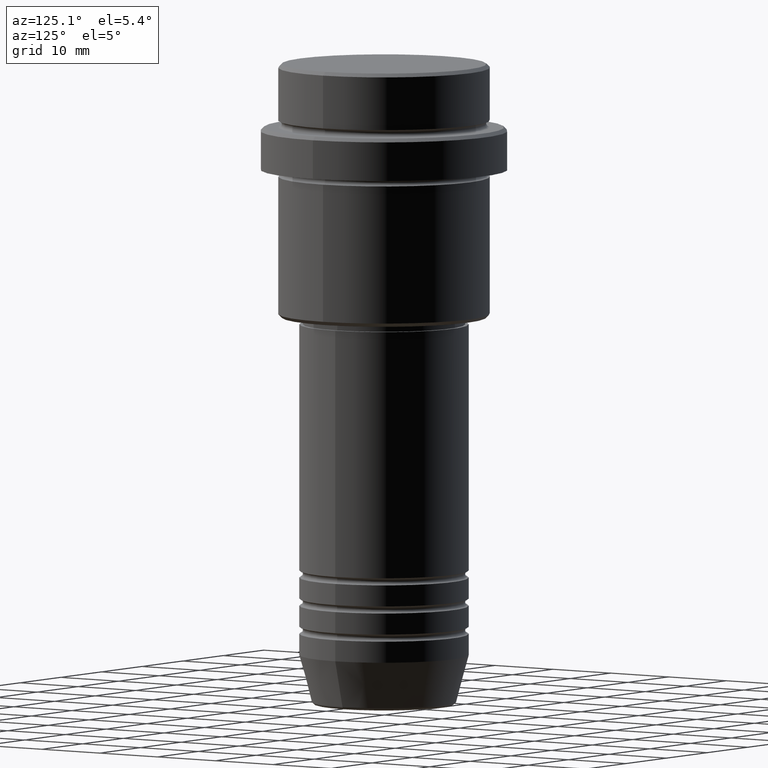
[diagram: clean part render]
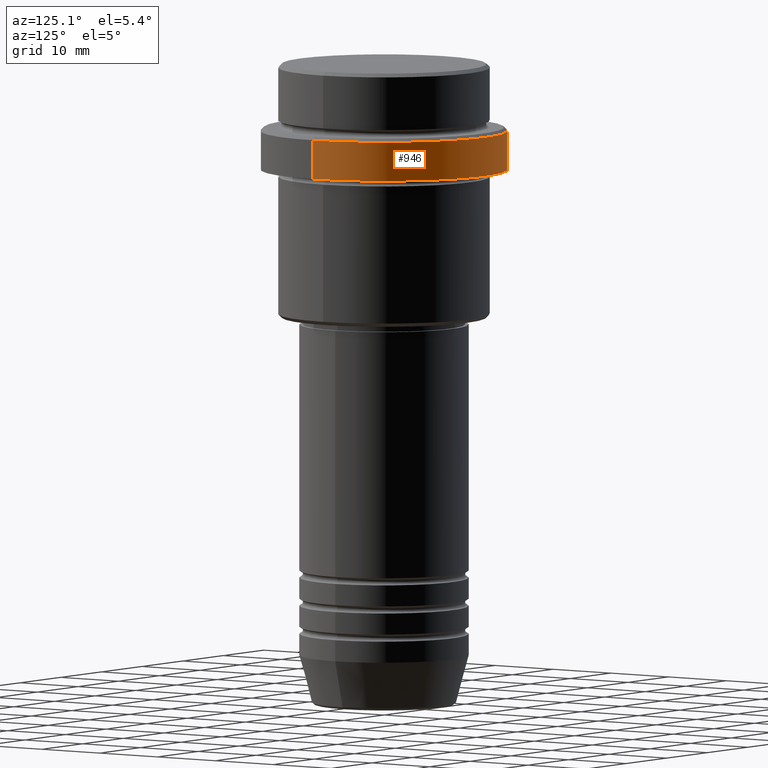
[diagram: same view with one face highlighted and labeled with its STEP entity id]
A machine part, auxiliary view. The second image highlights one B-rep face of the part: STEP entity #946.
In plain terms, the highlighted cylindrical surface (partial cylindrical patch) has radius 17.5 mm, axis along (-0, -0, 1).
Its self-contained STEP definition (entity closure, byte-faithful):
#11 = EDGE_LOOP ( 'NONE', ( #303, #1070, #486, #660 ) ) ;
#14 = CARTESIAN_POINT ( 'NONE',  ( 0.000000000000000000, 0.000000000000000000, 0.000000000000000000 ) ) ;
#19 = CARTESIAN_POINT ( 'NONE',  ( 17.50000000000000000, 0.000000000000000000, -9.500000000000012434 ) ) ;
#69 = CARTESIAN_POINT ( 'NONE',  ( -17.50000000000000000, 2.143131898507868248E-15, 0.000000000000000000 ) ) ;
#102 = CARTESIAN_POINT ( 'NONE',  ( 0.000000000000000000, 0.000000000000000000, -9.500000000000012434 ) ) ;
#268 = VECTOR ( 'NONE', #302, 1000.000000000000000 ) ;
#302 = DIRECTION ( 'NONE',  ( -0.000000000000000000, -0.000000000000000000, 1.000000000000000000 ) ) ;
#303 = ORIENTED_EDGE ( 'NONE', *, *, #656, .T. ) ;
#323 = DIRECTION ( 'NONE',  ( 1.000000000000000000, 0.000000000000000000, 0.000000000000000000 ) ) ;
#328 = EDGE_CURVE ( 'NONE', #541, #451, #721, .T. ) ;
#345 = AXIS2_PLACEMENT_3D ( 'NONE', #796, #1345, #1119 ) ;
#415 = CIRCLE ( 'NONE', #758, 17.50000000000000000 ) ;
#416 = CARTESIAN_POINT ( 'NONE',  ( 17.50000000000000000, 0.000000000000000000, 0.000000000000000000 ) ) ;
#432 = LINE ( 'NONE', #416, #962 ) ;
#451 = VERTEX_POINT ( 'NONE', #860 ) ;
#454 = DIRECTION ( 'NONE',  ( 0.000000000000000000, 0.000000000000000000, -1.000000000000000000 ) ) ;
#459 = EDGE_CURVE ( 'NONE', #451, #948, #415, .T. ) ;
#486 = ORIENTED_EDGE ( 'NONE', *, *, #459, .T. ) ;
#536 = AXIS2_PLACEMENT_3D ( 'NONE', #14, #1148, #1006 ) ;
#541 = VERTEX_POINT ( 'NONE', #1077 ) ;
#656 = EDGE_CURVE ( 'NONE', #947, #541, #960, .T. ) ;
#660 = ORIENTED_EDGE ( 'NONE', *, *, #852, .F. ) ;
#716 = CYLINDRICAL_SURFACE ( 'NONE', #536, 17.50000000000000000 ) ;
#721 = LINE ( 'NONE', #69, #268 ) ;
#758 = AXIS2_PLACEMENT_3D ( 'NONE', #102, #454, #323 ) ;
#796 = CARTESIAN_POINT ( 'NONE',  ( 0.000000000000000000, 0.000000000000000000, -14.99999999999999822 ) ) ;
#829 = FACE_OUTER_BOUND ( 'NONE', #11, .T. ) ;
#852 = EDGE_CURVE ( 'NONE', #947, #948, #432, .T. ) ;
#860 = CARTESIAN_POINT ( 'NONE',  ( -17.50000000000000000, 2.143131898507868248E-15, -9.500000000000012434 ) ) ;
#946 = ADVANCED_FACE ( 'NONE', ( #829 ), #716, .T. ) ;
#947 = VERTEX_POINT ( 'NONE', #991 ) ;
#948 = VERTEX_POINT ( 'NONE', #19 ) ;
#960 = CIRCLE ( 'NONE', #345, 17.50000000000000000 ) ;
#962 = VECTOR ( 'NONE', #1075, 1000.000000000000000 ) ;
#991 = CARTESIAN_POINT ( 'NONE',  ( 17.50000000000000000, 0.000000000000000000, -14.99999999999999822 ) ) ;
#1006 = DIRECTION ( 'NONE',  ( 1.000000000000000000, 0.000000000000000000, 0.000000000000000000 ) ) ;
#1070 = ORIENTED_EDGE ( 'NONE', *, *, #328, .T. ) ;
#1075 = DIRECTION ( 'NONE',  ( -0.000000000000000000, -0.000000000000000000, 1.000000000000000000 ) ) ;
#1077 = CARTESIAN_POINT ( 'NONE',  ( -17.50000000000000000, 2.143131898507868248E-15, -14.99999999999999822 ) ) ;
#1119 = DIRECTION ( 'NONE',  ( 1.000000000000000000, 0.000000000000000000, 0.000000000000000000 ) ) ;
#1148 = DIRECTION ( 'NONE',  ( -0.000000000000000000, -0.000000000000000000, 1.000000000000000000 ) ) ;
#1345 = DIRECTION ( 'NONE',  ( -0.000000000000000000, -0.000000000000000000, 1.000000000000000000 ) ) ;